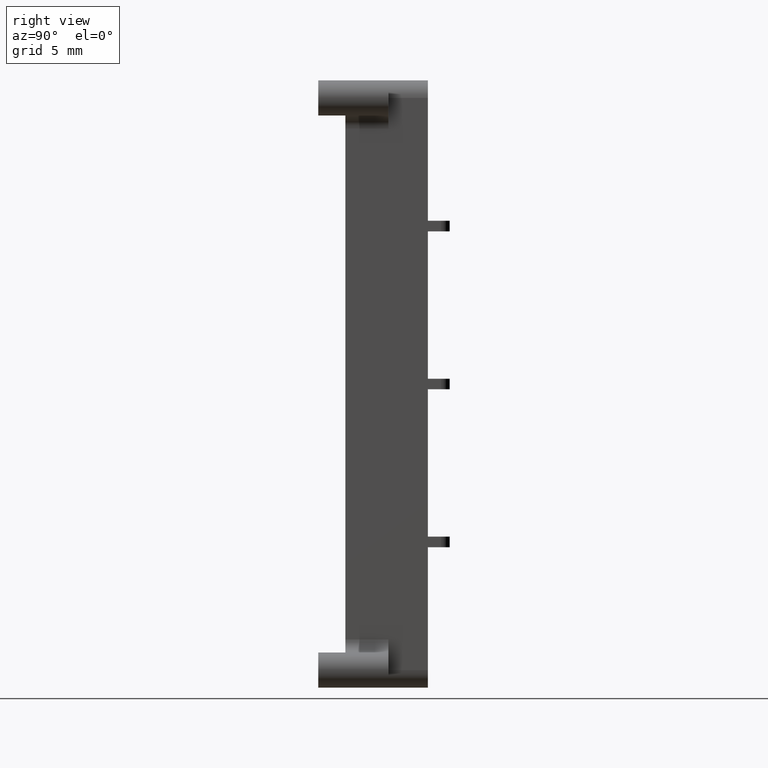
[diagram: clean part render]
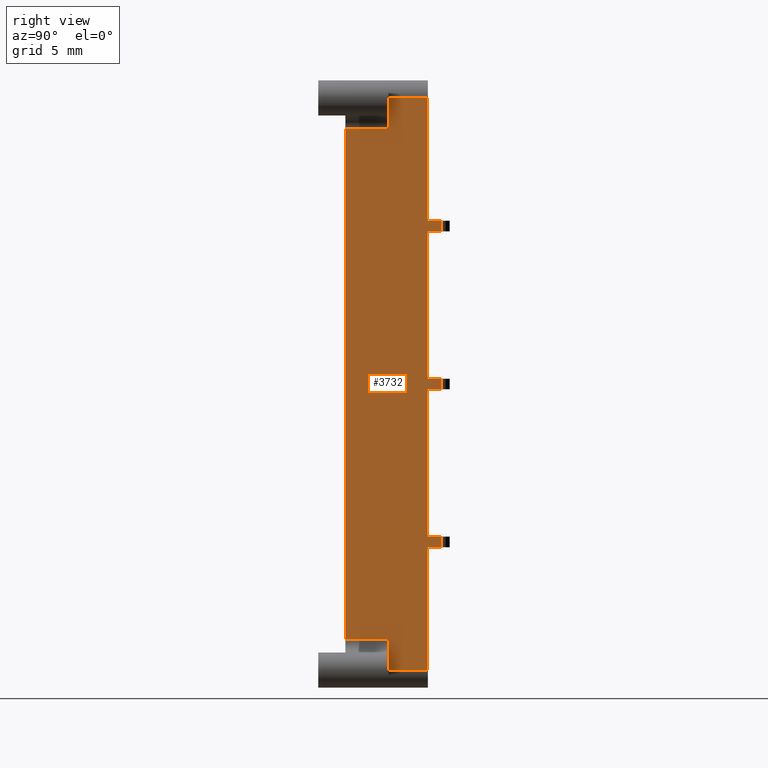
[diagram: same view with one face highlighted and labeled with its STEP entity id]
A machine part, right view. The second image highlights one B-rep face of the part: STEP entity #3732.
In plain terms, the highlighted planar face has unit normal (-1, -0, -0).
Its self-contained STEP definition (entity closure, byte-faithful):
#69 = DIRECTION ( 'NONE',  ( 2.625714205539857000E-033, -1.000000000000000000, 9.169429524186343400E-048 ) ) ;
#71 = CARTESIAN_POINT ( 'NONE',  ( 464.1252094327940100, 140.9878730676890100, 3.350000000000090700 ) ) ;
#84 = LINE ( 'NONE', #71, #3213 ) ;
#385 = PLANE ( 'NONE',  #3312 ) ;
#394 = CARTESIAN_POINT ( 'NONE',  ( 464.1252094327940100, 140.9878730676890100, -1.045883411433843800 ) ) ;
#405 = DIRECTION ( 'NONE',  ( -1.000000000000000000, -2.625714205539857000E-033, -3.492165866658390800E-015 ) ) ;
#406 = DIRECTION ( 'NONE',  ( -3.492165866658390800E-015, 0.0000000000000000000, 1.000000000000000000 ) ) ;
#422 = FACE_OUTER_BOUND ( 'NONE', #4629, .T. ) ;
#860 = CARTESIAN_POINT ( 'NONE',  ( 464.1252094327940100, 146.0878730676890000, -1.045883411433843800 ) ) ;
#863 = LINE ( 'NONE', #860, #3149 ) ;
#877 = DIRECTION ( 'NONE',  ( -3.492165866658390800E-015, 0.0000000000000000000, 1.000000000000000000 ) ) ;
#909 = EDGE_CURVE ( 'NONE', #2383, #2437, #4806, .T. ) ;
#938 = EDGE_CURVE ( 'NONE', #2464, #2379, #4833, .T. ) ;
#1065 = EDGE_CURVE ( 'NONE', #2423, #2327, #1077, .T. ) ;
#1077 = LINE ( 'NONE', #1080, #2888 ) ;
#1080 = CARTESIAN_POINT ( 'NONE',  ( 464.1252094327940100, 140.9878730676890100, 1.600000000000115100 ) ) ;
#1082 = DIRECTION ( 'NONE',  ( 2.625714205539857000E-033, -1.000000000000000000, 9.169429524186343400E-048 ) ) ;
#1122 = CARTESIAN_POINT ( 'NONE',  ( 464.1252094327940100, 146.0878730676890000, 3.350000000000088900 ) ) ;
#1131 = CARTESIAN_POINT ( 'NONE',  ( 464.1252094327938900, 148.3378730676890000, 34.20000000000001000 ) ) ;
#1143 = CARTESIAN_POINT ( 'NONE',  ( 464.1252094327940100, 146.0878730676890000, 1.600000000000116900 ) ) ;
#1153 = CARTESIAN_POINT ( 'NONE',  ( 464.1252094327939500, 143.6378730676889900, 32.45000000000001000 ) ) ;
#1168 = CARTESIAN_POINT ( 'NONE',  ( 464.1252094327940100, 148.3378730676890000, 1.600000000000116900 ) ) ;
#1170 = CARTESIAN_POINT ( 'NONE',  ( 464.1252094327940100, 149.0878730676890000, 8.599999999999999600 ) ) ;
#1177 = CARTESIAN_POINT ( 'NONE',  ( 464.1252094327940100, 143.6378730676889900, 3.350000000000090700 ) ) ;
#1182 = CARTESIAN_POINT ( 'NONE',  ( 464.1252094327940100, 148.3378730676890000, 17.60000000000000500 ) ) ;
#1225 = CARTESIAN_POINT ( 'NONE',  ( 464.1252094327940100, 149.0878730676890000, 9.200000000000111200 ) ) ;
#1227 = CARTESIAN_POINT ( 'NONE',  ( 464.1252094327940100, 148.3378730676890000, 9.200000000000111200 ) ) ;
#1228 = CARTESIAN_POINT ( 'NONE',  ( 464.1252094327940100, 149.0878730676890000, 18.20000000000000300 ) ) ;
#1239 = CARTESIAN_POINT ( 'NONE',  ( 464.1252094327939500, 148.3378730676890000, 8.599999999999999600 ) ) ;
#1251 = CARTESIAN_POINT ( 'NONE',  ( 464.1252094327940100, 148.3378730676890000, 26.60000000000000100 ) ) ;
#1255 = CARTESIAN_POINT ( 'NONE',  ( 464.1252094327940100, 148.3378730676890000, 18.19999999999999900 ) ) ;
#1258 = CARTESIAN_POINT ( 'NONE',  ( 464.1252094327938900, 146.0878730676890000, 32.45000000000001000 ) ) ;
#1262 = CARTESIAN_POINT ( 'NONE',  ( 464.1252094327938900, 146.0878730676890000, 34.20000000000001000 ) ) ;
#1278 = CARTESIAN_POINT ( 'NONE',  ( 464.1252094327939500, 149.0878730676890000, 27.20000000000000300 ) ) ;
#1289 = CARTESIAN_POINT ( 'NONE',  ( 464.1252094327939500, 149.0878730676890000, 26.59999999999999800 ) ) ;
#1322 = CARTESIAN_POINT ( 'NONE',  ( 464.1252094327940100, 149.0878730676890000, 17.60000000000000100 ) ) ;
#1331 = CARTESIAN_POINT ( 'NONE',  ( 464.1252094327938900, 148.3378730676890000, 27.20000000000000300 ) ) ;
#1371 = CARTESIAN_POINT ( 'NONE',  ( 464.1252094327940100, 149.0878730676890000, 26.60000000000000100 ) ) ;
#1376 = LINE ( 'NONE', #1371, #2961 ) ;
#1377 = DIRECTION ( 'NONE',  ( -9.546107180843072800E-035, -1.000000000000000000, 2.733577826868160200E-020 ) ) ;
#1515 = LINE ( 'NONE', #1542, #3008 ) ;
#1542 = CARTESIAN_POINT ( 'NONE',  ( 464.1252094327940100, 149.0878730676890000, 18.20000000000000300 ) ) ;
#1583 = DIRECTION ( 'NONE',  ( 9.546107180843072800E-035, 1.000000000000000000, -2.733577826868160200E-020 ) ) ;
#1600 = CARTESIAN_POINT ( 'NONE',  ( 464.1252094327940100, 149.0878730676890000, 27.20000000000000300 ) ) ;
#1610 = LINE ( 'NONE', #1600, #3053 ) ;
#1633 = DIRECTION ( 'NONE',  ( 9.546107180843072800E-035, 1.000000000000000000, -2.733577826868160200E-020 ) ) ;
#1783 = DIRECTION ( 'NONE',  ( 3.492165866658390800E-015, -0.0000000000000000000, -1.000000000000000000 ) ) ;
#1787 = CARTESIAN_POINT ( 'NONE',  ( 464.1252094327940100, 148.3378730676890000, -1.045883411433843800 ) ) ;
#1788 = LINE ( 'NONE', #1819, #3082 ) ;
#1801 = DIRECTION ( 'NONE',  ( 9.546107180843072800E-035, 1.000000000000000000, -2.733577826868160200E-020 ) ) ;
#1811 = CARTESIAN_POINT ( 'NONE',  ( 464.1252094327940100, 149.0878730676890000, 17.60000000000000500 ) ) ;
#1812 = DIRECTION ( 'NONE',  ( -9.546107180843072800E-035, -1.000000000000000000, 2.733577826868160200E-020 ) ) ;
#1814 = LINE ( 'NONE', #1787, #3107 ) ;
#1818 = LINE ( 'NONE', #1811, #3088 ) ;
#1819 = CARTESIAN_POINT ( 'NONE',  ( 464.1252094327940100, 149.0878730676890000, 9.200000000000111200 ) ) ;
#1821 = CARTESIAN_POINT ( 'NONE',  ( 464.1252094327940100, 148.3378730676890000, -1.045883411433843800 ) ) ;
#1824 = LINE ( 'NONE', #1891, #3157 ) ;
#1833 = DIRECTION ( 'NONE',  ( 3.492165866658390800E-015, -0.0000000000000000000, -1.000000000000000000 ) ) ;
#1839 = LINE ( 'NONE', #1821, #3143 ) ;
#1843 = CARTESIAN_POINT ( 'NONE',  ( 464.1252094327940100, 149.0878730676890000, -1.045883411433843800 ) ) ;
#1858 = LINE ( 'NONE', #1843, #3156 ) ;
#1859 = DIRECTION ( 'NONE',  ( 3.492165866658390800E-015, -0.0000000000000000000, -1.000000000000000000 ) ) ;
#1875 = DIRECTION ( 'NONE',  ( -9.546107180843072800E-035, -1.000000000000000000, 2.733577826868160200E-020 ) ) ;
#1877 = LINE ( 'NONE', #1880, #3174 ) ;
#1878 = DIRECTION ( 'NONE',  ( 3.492165866658390800E-015, -0.0000000000000000000, -1.000000000000000000 ) ) ;
#1880 = CARTESIAN_POINT ( 'NONE',  ( 464.1252094327940100, 149.0878730676890000, 8.600000000000001400 ) ) ;
#1887 = CARTESIAN_POINT ( 'NONE',  ( 464.1252094327940100, 149.0878730676890000, -1.045883411433843800 ) ) ;
#1891 = CARTESIAN_POINT ( 'NONE',  ( 464.1252094327940100, 148.3378730676890000, -1.045883411433843800 ) ) ;
#1902 = LINE ( 'NONE', #1887, #3160 ) ;
#1903 = DIRECTION ( 'NONE',  ( 3.492165866658390800E-015, -0.0000000000000000000, -1.000000000000000000 ) ) ;
#1907 = CARTESIAN_POINT ( 'NONE',  ( 464.1252094327940100, 146.0878730676890000, -1.045883411433843800 ) ) ;
#1913 = LINE ( 'NONE', #1907, #3171 ) ;
#1914 = DIRECTION ( 'NONE',  ( -2.625714205539857000E-033, 1.000000000000000000, -9.169429524186343400E-048 ) ) ;
#1919 = LINE ( 'NONE', #1935, #3132 ) ;
#1922 = DIRECTION ( 'NONE',  ( -3.492165866658390800E-015, 0.0000000000000000000, 1.000000000000000000 ) ) ;
#1924 = DIRECTION ( 'NONE',  ( 3.492165866658390800E-015, -0.0000000000000000000, -1.000000000000000000 ) ) ;
#1926 = DIRECTION ( 'NONE',  ( 3.492165866658390800E-015, -0.0000000000000000000, -1.000000000000000000 ) ) ;
#1927 = LINE ( 'NONE', #1928, #3179 ) ;
#1928 = CARTESIAN_POINT ( 'NONE',  ( 464.1252094327938900, 140.9878730676890100, 32.45000000000001000 ) ) ;
#1935 = CARTESIAN_POINT ( 'NONE',  ( 464.1252094327940100, 148.3378730676890000, -1.045883411433843800 ) ) ;
#1936 = LINE ( 'NONE', #1937, #3173 ) ;
#1937 = CARTESIAN_POINT ( 'NONE',  ( 464.1252094327940100, 149.0878730676890000, -1.045883411433843800 ) ) ;
#2327 = VERTEX_POINT ( 'NONE', #1143 ) ;
#2374 = VERTEX_POINT ( 'NONE', #1122 ) ;
#2379 = VERTEX_POINT ( 'NONE', #1131 ) ;
#2383 = VERTEX_POINT ( 'NONE', #1177 ) ;
#2423 = VERTEX_POINT ( 'NONE', #1168 ) ;
#2425 = VERTEX_POINT ( 'NONE', #1182 ) ;
#2437 = VERTEX_POINT ( 'NONE', #1153 ) ;
#2441 = VERTEX_POINT ( 'NONE', #1170 ) ;
#2451 = VERTEX_POINT ( 'NONE', #1239 ) ;
#2461 = VERTEX_POINT ( 'NONE', #1255 ) ;
#2463 = VERTEX_POINT ( 'NONE', #1258 ) ;
#2464 = VERTEX_POINT ( 'NONE', #1262 ) ;
#2467 = VERTEX_POINT ( 'NONE', #1225 ) ;
#2472 = VERTEX_POINT ( 'NONE', #1227 ) ;
#2483 = VERTEX_POINT ( 'NONE', #1228 ) ;
#2484 = VERTEX_POINT ( 'NONE', #1251 ) ;
#2520 = VERTEX_POINT ( 'NONE', #1289 ) ;
#2533 = VERTEX_POINT ( 'NONE', #1322 ) ;
#2546 = VERTEX_POINT ( 'NONE', #1278 ) ;
#2549 = VERTEX_POINT ( 'NONE', #1331 ) ;
#2758 = VECTOR ( 'NONE', #4870, 1000.000000000000000 ) ;
#2801 = VECTOR ( 'NONE', #4788, 1000.000000000000000 ) ;
#2888 = VECTOR ( 'NONE', #1082, 1000.000000000000000 ) ;
#2961 = VECTOR ( 'NONE', #1377, 1000.000000000000000 ) ;
#3008 = VECTOR ( 'NONE', #1583, 1000.000000000000000 ) ;
#3053 = VECTOR ( 'NONE', #1633, 1000.000000000000000 ) ;
#3082 = VECTOR ( 'NONE', #1801, 1000.000000000000000 ) ;
#3088 = VECTOR ( 'NONE', #1812, 1000.000000000000000 ) ;
#3107 = VECTOR ( 'NONE', #1783, 1000.000000000000000 ) ;
#3132 = VECTOR ( 'NONE', #1924, 1000.000000000000000 ) ;
#3143 = VECTOR ( 'NONE', #1833, 1000.000000000000000 ) ;
#3149 = VECTOR ( 'NONE', #877, 1000.000000000000000 ) ;
#3156 = VECTOR ( 'NONE', #1859, 1000.000000000000000 ) ;
#3157 = VECTOR ( 'NONE', #1878, 1000.000000000000000 ) ;
#3160 = VECTOR ( 'NONE', #1903, 1000.000000000000000 ) ;
#3171 = VECTOR ( 'NONE', #1922, 1000.000000000000000 ) ;
#3173 = VECTOR ( 'NONE', #1926, 1000.000000000000000 ) ;
#3174 = VECTOR ( 'NONE', #1875, 1000.000000000000000 ) ;
#3179 = VECTOR ( 'NONE', #1914, 1000.000000000000000 ) ;
#3213 = VECTOR ( 'NONE', #69, 1000.000000000000000 ) ;
#3312 = AXIS2_PLACEMENT_3D ( 'NONE', #394, #405, #406 ) ;
#3425 = EDGE_CURVE ( 'NONE', #2520, #2484, #1376, .T. ) ;
#3494 = EDGE_CURVE ( 'NONE', #2461, #2483, #1515, .T. ) ;
#3518 = EDGE_CURVE ( 'NONE', #2549, #2546, #1610, .T. ) ;
#3573 = EDGE_CURVE ( 'NONE', #2451, #2423, #1814, .T. ) ;
#3578 = EDGE_CURVE ( 'NONE', #2472, #2467, #1788, .T. ) ;
#3581 = EDGE_CURVE ( 'NONE', #2533, #2425, #1818, .T. ) ;
#3592 = EDGE_CURVE ( 'NONE', #2379, #2549, #1839, .T. ) ;
#3593 = EDGE_CURVE ( 'NONE', #2467, #2441, #1858, .T. ) ;
#3596 = EDGE_CURVE ( 'NONE', #2425, #2472, #1824, .T. ) ;
#3605 = EDGE_CURVE ( 'NONE', #2441, #2451, #1877, .T. ) ;
#3608 = EDGE_CURVE ( 'NONE', #2483, #2533, #1902, .T. ) ;
#3617 = EDGE_CURVE ( 'NONE', #2463, #2464, #1913, .T. ) ;
#3619 = EDGE_CURVE ( 'NONE', #2546, #2520, #1936, .T. ) ;
#3621 = EDGE_CURVE ( 'NONE', #2484, #2461, #1919, .T. ) ;
#3622 = EDGE_CURVE ( 'NONE', #2437, #2463, #1927, .T. ) ;
#3634 = EDGE_CURVE ( 'NONE', #2327, #2374, #863, .T. ) ;
#3656 = EDGE_CURVE ( 'NONE', #2374, #2383, #84, .T. ) ;
#3732 = ADVANCED_FACE ( 'NONE', ( #422 ), #385, .F. ) ;
#4189 = ORIENTED_EDGE ( 'NONE', *, *, #3656, .F. ) ;
#4190 = ORIENTED_EDGE ( 'NONE', *, *, #3634, .F. ) ;
#4193 = ORIENTED_EDGE ( 'NONE', *, *, #3617, .F. ) ;
#4196 = ORIENTED_EDGE ( 'NONE', *, *, #3425, .F. ) ;
#4197 = ORIENTED_EDGE ( 'NONE', *, *, #3596, .F. ) ;
#4201 = ORIENTED_EDGE ( 'NONE', *, *, #3573, .F. ) ;
#4223 = ORIENTED_EDGE ( 'NONE', *, *, #3621, .F. ) ;
#4224 = ORIENTED_EDGE ( 'NONE', *, *, #3592, .F. ) ;
#4225 = ORIENTED_EDGE ( 'NONE', *, *, #938, .F. ) ;
#4226 = ORIENTED_EDGE ( 'NONE', *, *, #3622, .F. ) ;
#4229 = ORIENTED_EDGE ( 'NONE', *, *, #3619, .F. ) ;
#4230 = ORIENTED_EDGE ( 'NONE', *, *, #3494, .F. ) ;
#4233 = ORIENTED_EDGE ( 'NONE', *, *, #1065, .F. ) ;
#4235 = ORIENTED_EDGE ( 'NONE', *, *, #3608, .F. ) ;
#4236 = ORIENTED_EDGE ( 'NONE', *, *, #909, .F. ) ;
#4238 = ORIENTED_EDGE ( 'NONE', *, *, #3578, .F. ) ;
#4241 = ORIENTED_EDGE ( 'NONE', *, *, #3593, .F. ) ;
#4242 = ORIENTED_EDGE ( 'NONE', *, *, #3581, .F. ) ;
#4248 = ORIENTED_EDGE ( 'NONE', *, *, #3605, .F. ) ;
#4249 = ORIENTED_EDGE ( 'NONE', *, *, #3518, .F. ) ;
#4629 = EDGE_LOOP ( 'NONE', ( #4189, #4190, #4233, #4201, #4248, #4241, #4238, #4197, #4242, #4235, #4230, #4223, #4196, #4229, #4249, #4224, #4225, #4193, #4226, #4236 ) ) ;
#4788 = DIRECTION ( 'NONE',  ( -0.0000000000000000000, 2.733577826868160200E-020, 1.000000000000000000 ) ) ;
#4806 = LINE ( 'NONE', #4813, #2801 ) ;
#4813 = CARTESIAN_POINT ( 'NONE',  ( 464.1252094327940100, 143.6378730676889900, 3.350000000000090200 ) ) ;
#4833 = LINE ( 'NONE', #4867, #2758 ) ;
#4867 = CARTESIAN_POINT ( 'NONE',  ( 464.1252094327938900, 140.9878730676890100, 34.20000000000000300 ) ) ;
#4870 = DIRECTION ( 'NONE',  ( -2.625714205539857000E-033, 1.000000000000000000, -9.169429524186343400E-048 ) ) ;